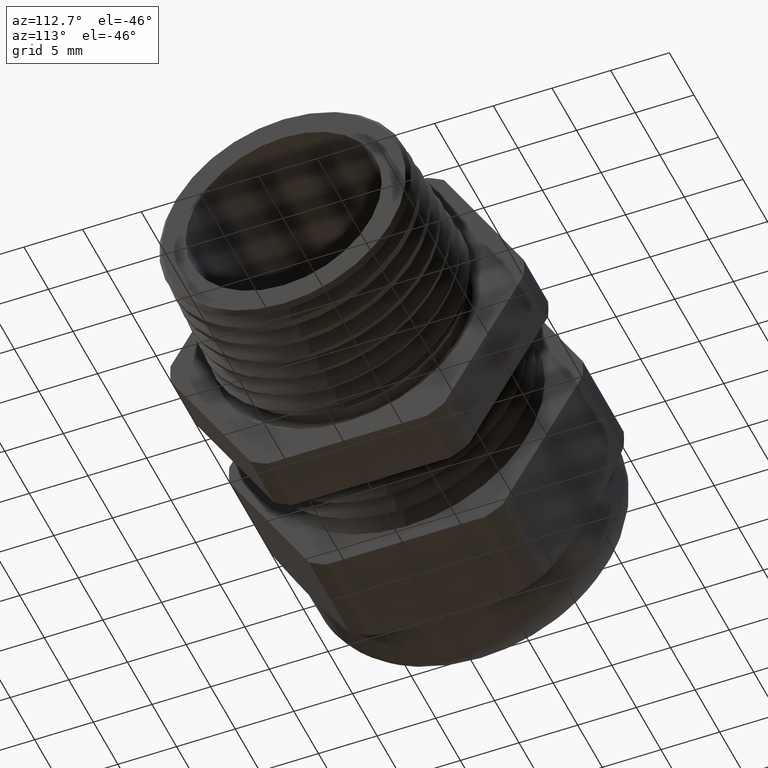
[diagram: clean part render]
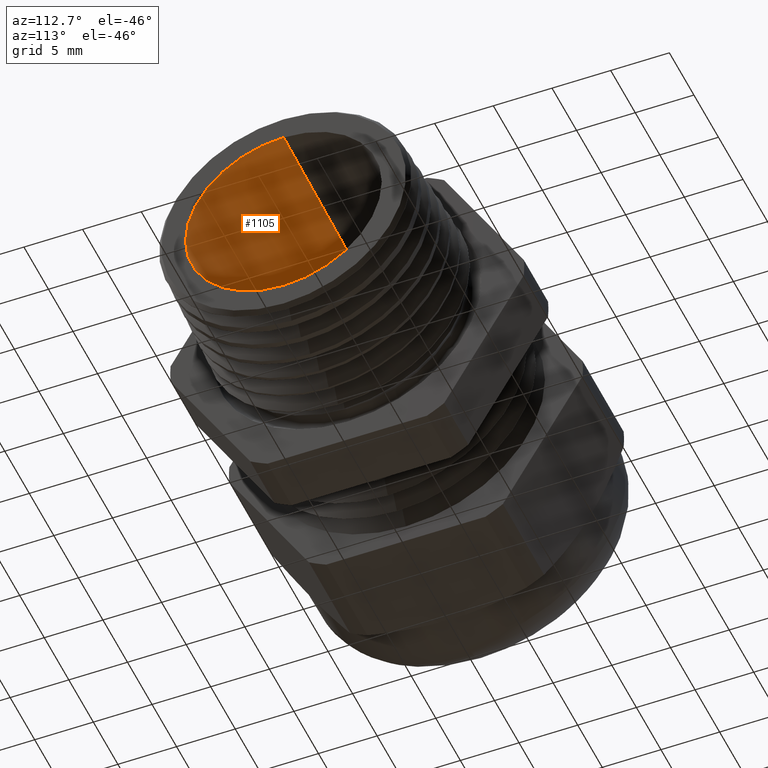
[diagram: same view with one face highlighted and labeled with its STEP entity id]
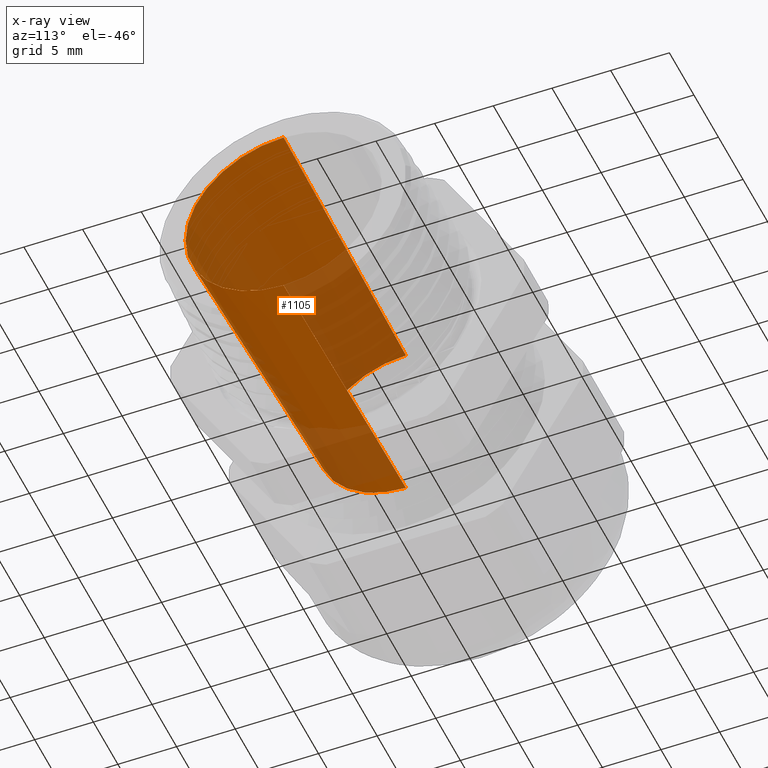
[diagram: x-ray of the same camera — body ghosted, the highlighted face saturated]
A machine part, auxiliary view. The second image highlights one B-rep face of the part: STEP entity #1105.
The next image is the same camera in x-ray: the body ghosted, the highlighted face saturated — about 32% of this face is hidden behind the body in this view.
In plain terms, the highlighted conical surface has half-angle 2 deg.
Its self-contained STEP definition (entity closure, byte-faithful):
#1105 = ADVANCED_FACE ( 'NONE', ( #3181 ), #3179, .F. ) ;
#1106 = EDGE_LOOP ( 'NONE', ( #1126, #1175, #1178, #1118 ) ) ;
#1115 = EDGE_CURVE ( 'NONE', #1127, #1119, #3224, .T. ) ;
#1116 = EDGE_CURVE ( 'NONE', #1117, #1119, #3220, .T. ) ;
#1117 = VERTEX_POINT ( 'NONE', #3215 ) ;
#1118 = ORIENTED_EDGE ( 'NONE', *, *, #1177, .F. ) ;
#1119 = VERTEX_POINT ( 'NONE', #3214 ) ;
#1125 = VERTEX_POINT ( 'NONE', #3202 ) ;
#1126 = ORIENTED_EDGE ( 'NONE', *, *, #1176, .T. ) ;
#1127 = VERTEX_POINT ( 'NONE', #3201 ) ;
#1175 = ORIENTED_EDGE ( 'NONE', *, *, #1115, .T. ) ;
#1176 = EDGE_CURVE ( 'NONE', #1125, #1127, #3284, .T. ) ;
#1177 = EDGE_CURVE ( 'NONE', #1125, #1117, #3279, .T. ) ;
#1178 = ORIENTED_EDGE ( 'NONE', *, *, #1116, .F. ) ;
#3175 = DIRECTION ( 'NONE',  ( 0.0000000000000000000, 0.0000000000000000000, -1.000000000000000000 ) ) ;
#3176 = DIRECTION ( 'NONE',  ( 1.000000000000000000, 0.0000000000000000000, 0.0000000000000000000 ) ) ;
#3177 = CARTESIAN_POINT ( 'NONE',  ( -0.4708333333333334900, 0.0000000000000000000, 0.0000000000000000000 ) ) ;
#3178 = AXIS2_PLACEMENT_3D ( 'NONE', #3177, #3176, #3175 ) ;
#3179 = CONICAL_SURFACE ( 'NONE', #3178, 0.2949999999999999800, 0.03490658503988732600 ) ;
#3181 = FACE_OUTER_BOUND ( 'NONE', #1106, .T. ) ;
#3201 = CARTESIAN_POINT ( 'NONE',  ( -0.4708333333333334900, 0.0000000000000000000, 0.2949999999999999800 ) ) ;
#3202 = CARTESIAN_POINT ( 'NONE',  ( -0.4708333333333334900, 3.612708057484692000E-017, -0.2949999999999999800 ) ) ;
#3214 = CARTESIAN_POINT ( 'NONE',  ( 0.5100000000000000100, 4.032167401658163500E-017, 0.3292514547431566500 ) ) ;
#3215 = CARTESIAN_POINT ( 'NONE',  ( 0.5100000000000000100, 0.0000000000000000000, -0.3292514547431566500 ) ) ;
#3216 = DIRECTION ( 'NONE',  ( 0.0000000000000000000, 0.0000000000000000000, 1.000000000000000000 ) ) ;
#3217 = DIRECTION ( 'NONE',  ( -1.000000000000000000, 0.0000000000000000000, 0.0000000000000000000 ) ) ;
#3218 = CARTESIAN_POINT ( 'NONE',  ( 0.5100000000000000100, 0.0000000000000000000, 0.0000000000000000000 ) ) ;
#3219 = AXIS2_PLACEMENT_3D ( 'NONE', #3218, #3217, #3216 ) ;
#3220 = CIRCLE ( 'NONE', #3219, 0.3292514547431566500 ) ;
#3221 = DIRECTION ( 'NONE',  ( 0.9993908270190957600, 4.273955692857231900E-018, 0.03489949670250170500 ) ) ;
#3222 = VECTOR ( 'NONE', #3221, 39.37007874015748900 ) ;
#3223 = CARTESIAN_POINT ( 'NONE',  ( -0.4708333333333334900, 3.612708057484692000E-017, 0.2949999999999999800 ) ) ;
#3224 = LINE ( 'NONE', #3223, #3222 ) ;
#3276 = DIRECTION ( 'NONE',  ( 0.9993908270190957600, 0.0000000000000000000, -0.03489949670250170500 ) ) ;
#3277 = VECTOR ( 'NONE', #3276, 39.37007874015748900 ) ;
#3278 = CARTESIAN_POINT ( 'NONE',  ( -0.4708333333333334900, 0.0000000000000000000, -0.2949999999999999800 ) ) ;
#3279 = LINE ( 'NONE', #3278, #3277 ) ;
#3280 = DIRECTION ( 'NONE',  ( 0.0000000000000000000, 0.0000000000000000000, 1.000000000000000000 ) ) ;
#3281 = DIRECTION ( 'NONE',  ( -1.000000000000000000, 0.0000000000000000000, 0.0000000000000000000 ) ) ;
#3282 = CARTESIAN_POINT ( 'NONE',  ( -0.4708333333333334900, 0.0000000000000000000, 0.0000000000000000000 ) ) ;
#3283 = AXIS2_PLACEMENT_3D ( 'NONE', #3282, #3281, #3280 ) ;
#3284 = CIRCLE ( 'NONE', #3283, 0.2949999999999999800 ) ;